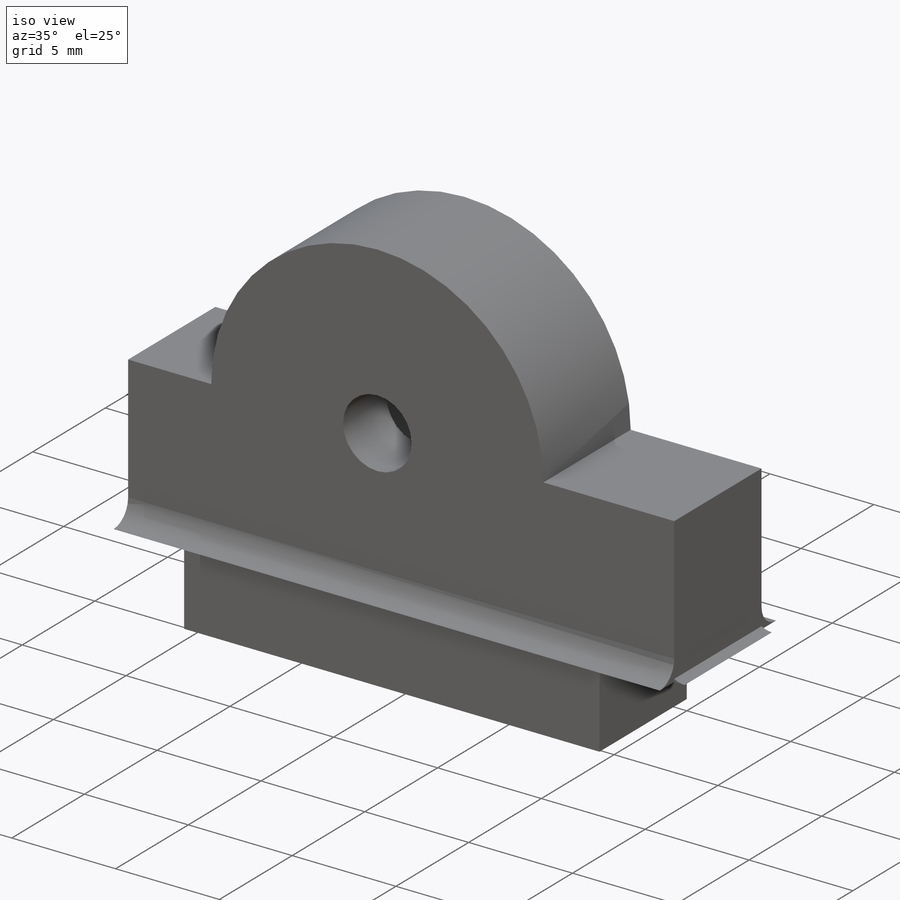
[diagram: iso view]
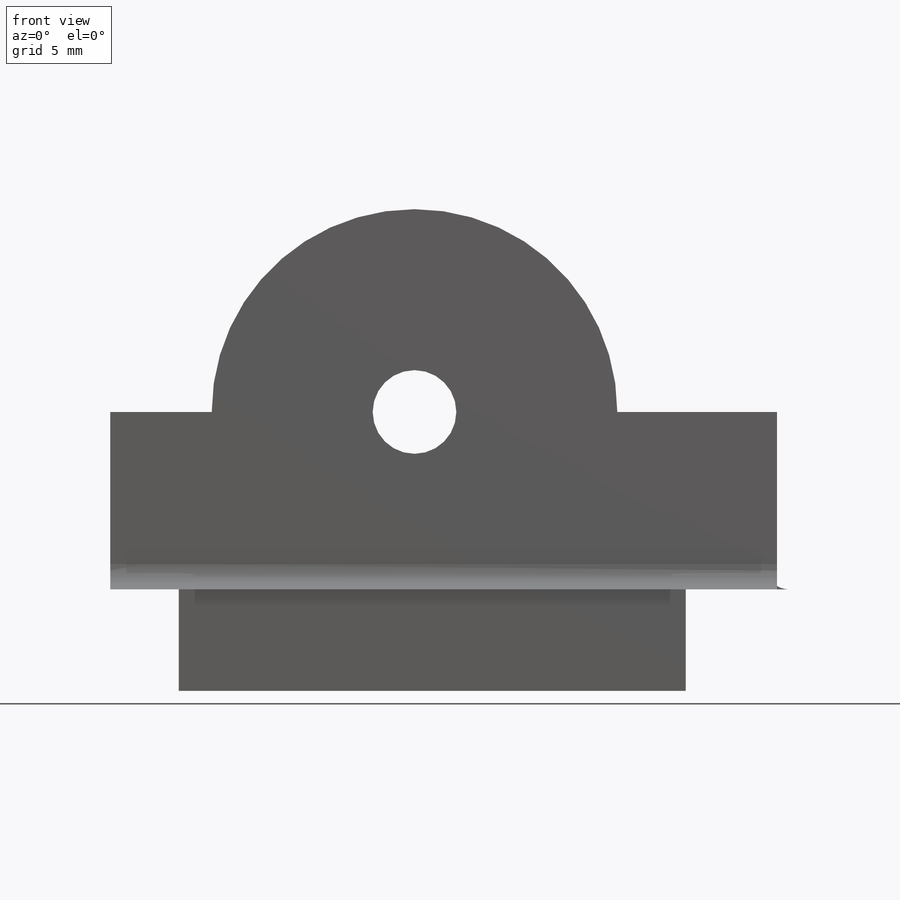
[diagram: front view]
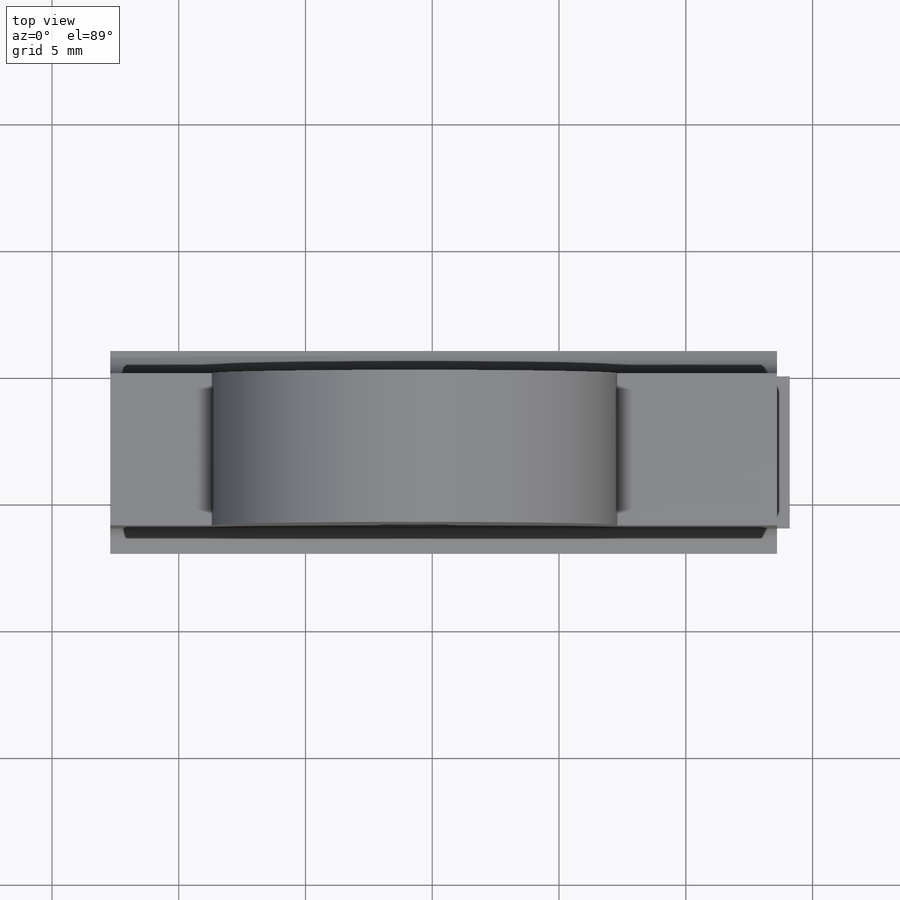
[diagram: top view]
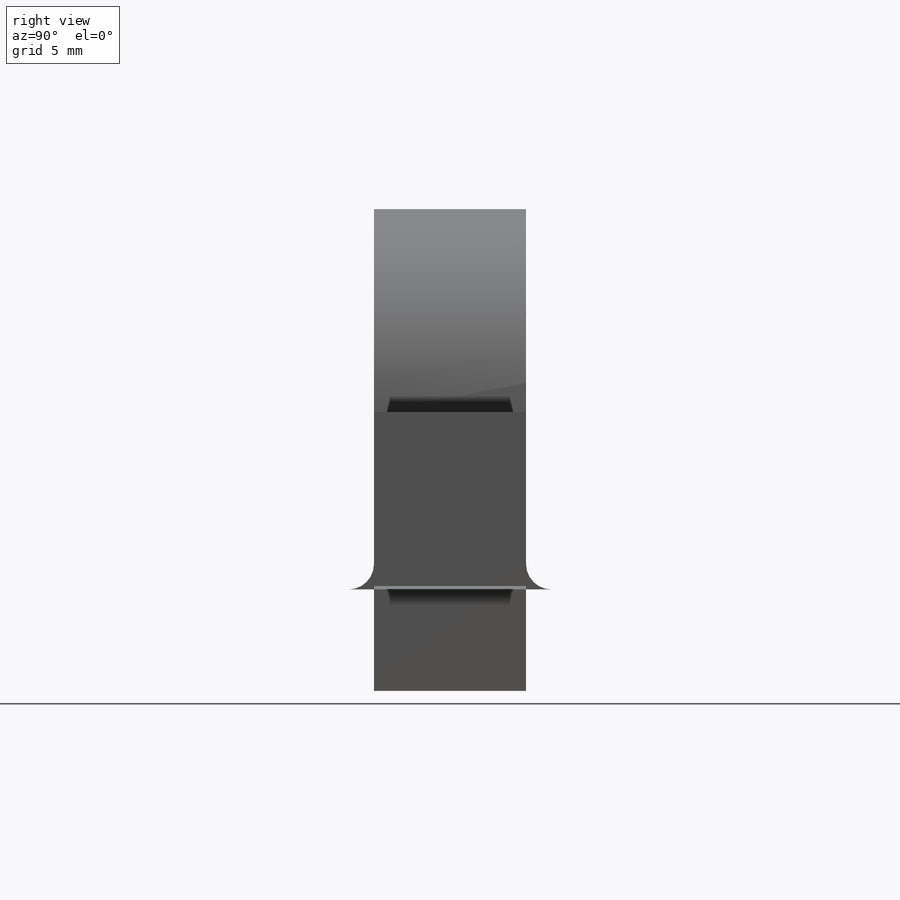
[diagram: right view]
SOLIDWORKS PART (.sldprt)
format: sldprt  version: not decoded by parser v0  size: 257,024 bytes
history: native  units: mm
features: sketch x4, extrude x4, material x1 (+13 scaffold rows collapsed)
feature tree (22):
  scaffold x13  (default folders/planes/origin — collapsed)
  material  "Material <not specified>"
  sketch  "Sketch1"  dims[c1.D1=~2.65046mm c1.D5=8.0mm c1.D6=3.0mm c2.D1=8.0mm c2.D11=1.0mm c2.D2=8.0mm c2.D4=6.3mm c3.D2=8.0mm c3.D4=5.8mm c3.D5=1.5mm c3.D1=20.0mm c4.D2=4.0mm c4.D3=3.0mm c4.D4=7.0mm c4.D7=5.0mm c5.D3=1.5mm c5.D4=7.0mm c5.D7=10.0mm c5.D2=11.0mm c6.D7=5.0mm c6.D8=4.0mm c6.D9=~8.082784mm c6.D10=15.84mm c6.D11=2.0mm c6.D12=3.0mm c6.D13=~6.082784mm c6.D2=5.0mm c7.D7=~5.082784mm c7.D8=4.0mm c7.D9=9.0mm c7.D12=~2.082784mm c7.D13=3.5mm c7.D2=5.1mm c8.D7=7.0mm c8.D8=1.5mm c8.D9=4.0mm c9.D8=3.0mm c9.D2=7.0mm c9.D3=8.5mm c9.D4=10.0mm c9.D5=11.5mm c9.D6=13.0mm c9.D7=20.0mm c10.D8=23.1mm c10.D9=1.5mm c10.D2=7.0mm c10.D3=8.5mm c10.D4=10.0mm c10.D5=12.1mm c10.D6=20.0mm c10.D7=23.6mm c11.D8=1.5mm c11.D9=4.0mm c11.D10=~8.401924mm c11.D11=11.0mm c11.D12=~13.598076mm c12.D10=~8.401924mm c12.D12=1.0mm c12.D13=25.0mm c12.D14=10.8mm c12.D15=24.6mm c12.D11=3.3mm c12.D1=7.0mm c12.D3=2.7mm c12.D5=9.3mm c12.D7=23.6mm]
  extrude  "Boss-Extrude1"  Depth=6mm
  sketch  "Sketch2"  dims[D1=1.0mm D2=1.0mm D3=6.0mm D4=3.0mm D5=4.0mm D6=1.0mm]
  extrude  "Boss-Extrude2"  [1 undecoded]
  sketch  "Sketch4"  dims[D1=1.0mm D2=1.0mm D3=10.8mm D4=12.3mm D5=4.0mm]
  extrude  "Boss-Extrude3"  [1 undecoded]
  sketch  "Sketch5"  dims[D1=3.3mm D2=5.8mm]
  extrude  "Boss-Extrude4"  Depth=3mm
decode coverage: 6 of 8 modeling features carry decoded parameters
note: ~ marks probable driven/reference dimensions
note: 2 parameter values undecoded
note: suppression state not decoded; provenance and decode notes live in map.json
